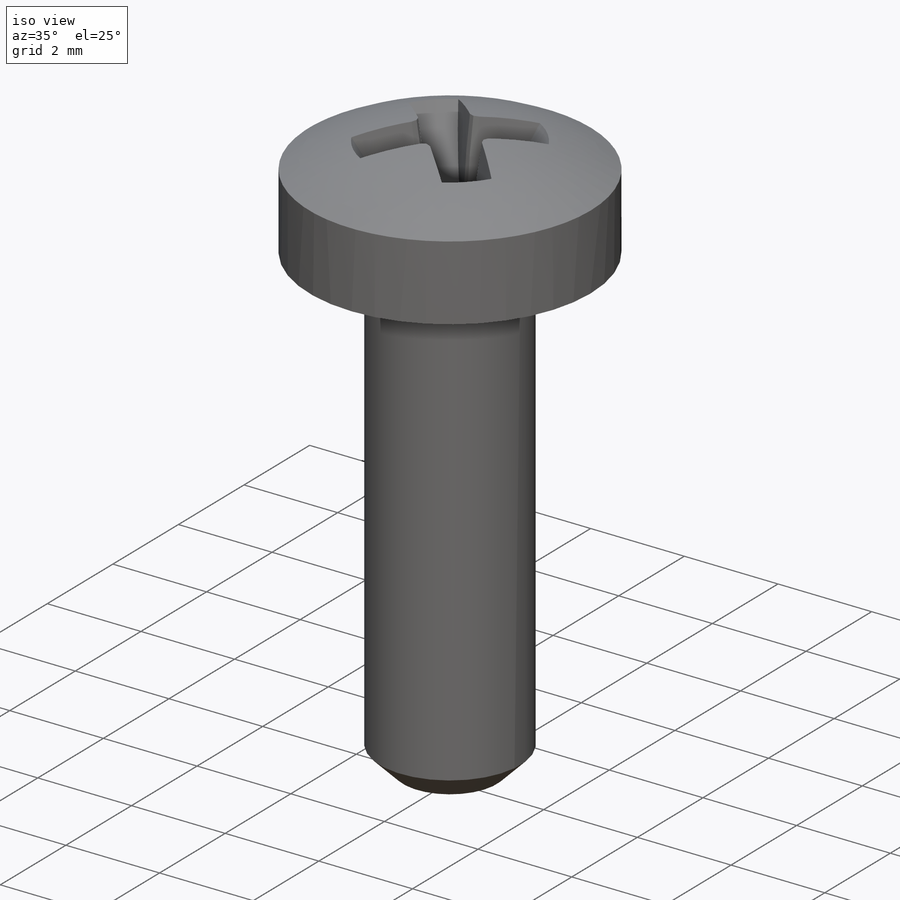
[diagram: iso view]
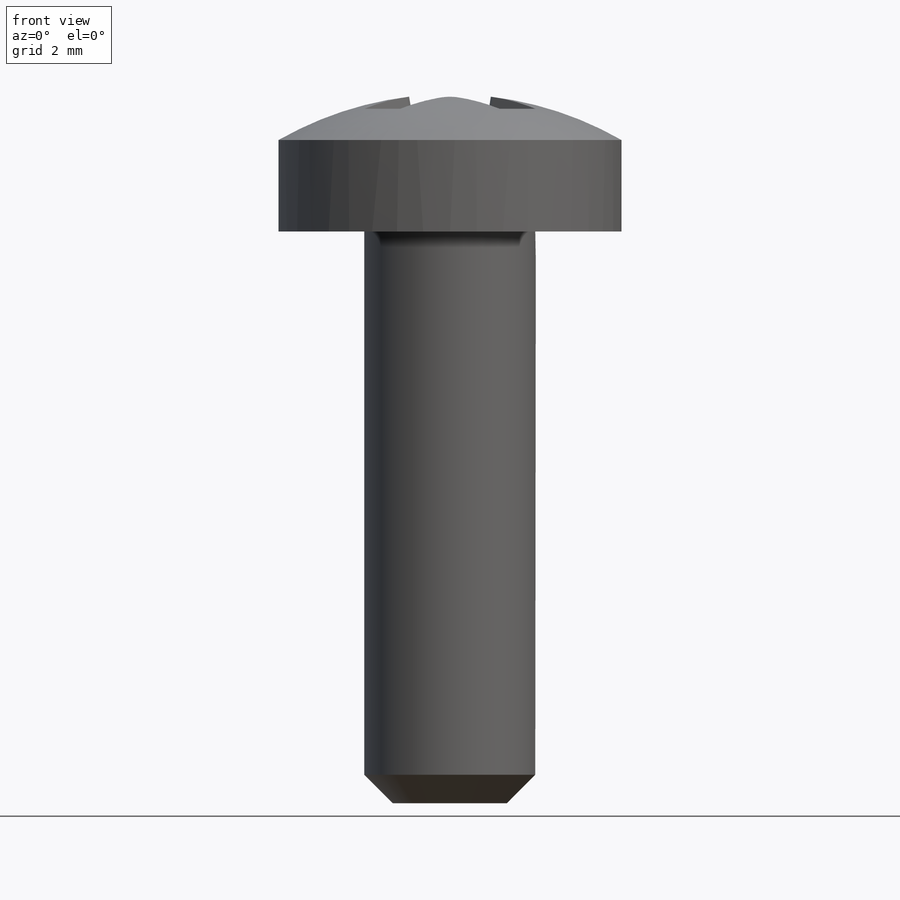
[diagram: front view]
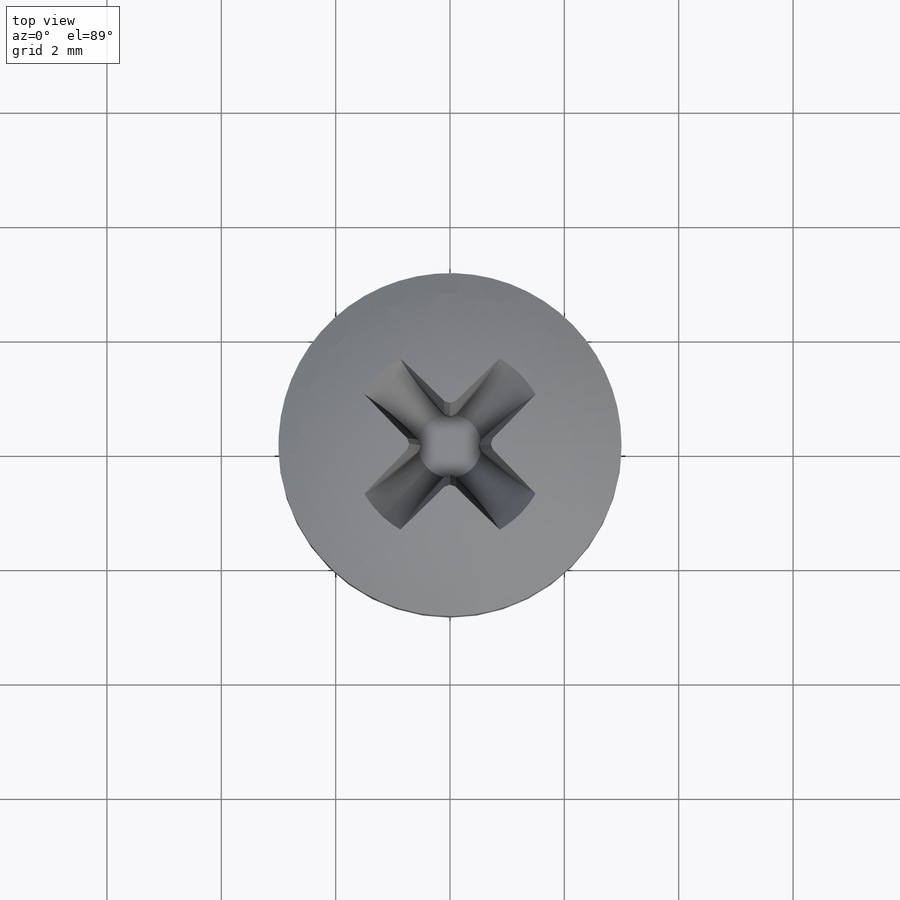
[diagram: top view]
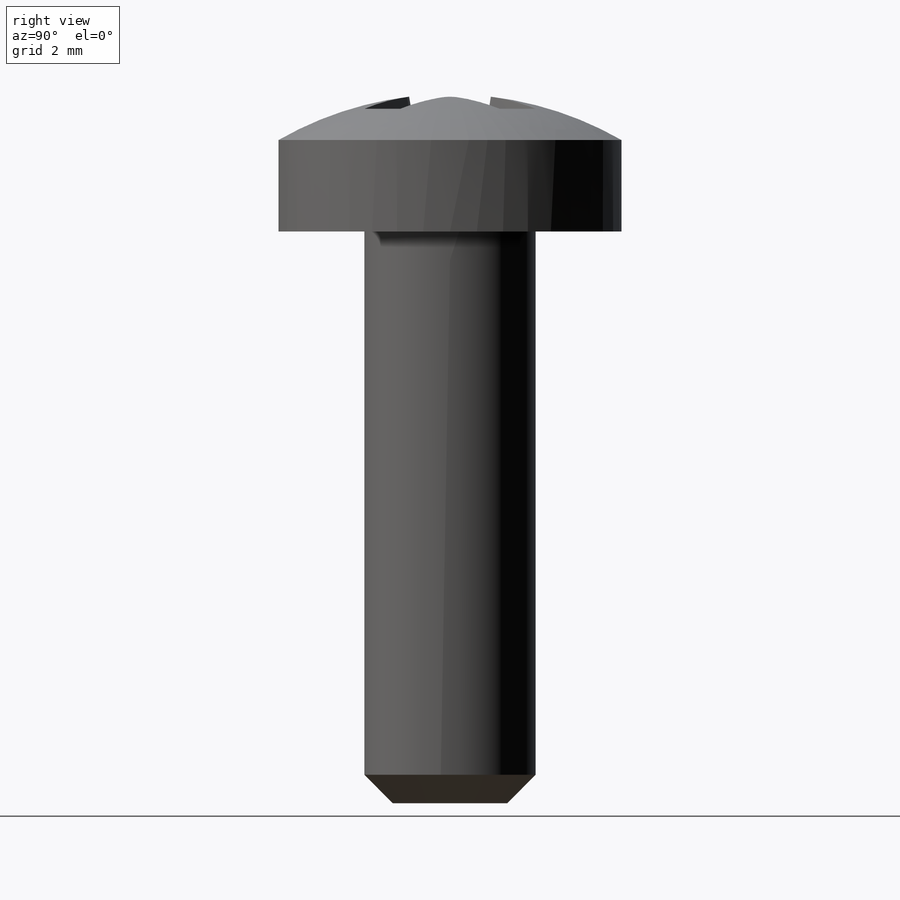
[diagram: right view]
SOLIDWORKS PART (.sldprt)
format: sldprt  version: not decoded by parser v0  size: 1,861,632 bytes
history: native  units: mm
features: sketch x4, plane x3, revolve x2, material x1, cut_revolve x1, pattern_circular x1, boolean_combine x1 + 1 further entry (+9 scaffold rows collapsed)
feature tree (23):
  scaffold x9  (default folders/planes/origin — collapsed)
  material  "Acier non allié"
  plane  "Plan de face"
  plane  "Plan de dessus"
  plane  "Plan de droite"
  "Famille de pièces"
  sketch  "Esquisse1"  dims[c1.D1=~14.598221mm c1.D5=2.4mm c2.D1=~27.659786mm c2.D4=4.0mm c3.D1=~62.490629mm c3.D4=4.0mm c3.D3=0.5mm c3.D2=0.5mm c4.D1=0.8mm c4.D4=2.4mm c4.D5=2.2mm c5.D4=~1.779665mm c5.D5=~3.55933mm c6.D4=2.0mm c7.D4=8.0mm]
  revolve  "Révolution1"  Angle=360deg
  sketch  "Esquisse3"  dims[c1.D1=~22.579361mm c2.D1=~18.215227mm]
  sketch  "Esquisse4"  dims[c1.D1=3.0mm c1.D2=~1.012746mm c2.D2=120.0deg c2.D3=10.0mm]
  revolve  "Révolution2"  Angle=360deg
  sketch  "Esquisse5"  dims[c1.D1=12.0mm c1.D2=~10.565467mm c2.D2=140.0deg c2.D3=~8.314862mm c3.D3=45.0deg c4.D3=~11.63603mm c5.D3=90.0deg]
  cut_revolve  "Enlèvement de matière-Révolution2"  Angle=360deg
  pattern_circular  "Répétition circulaire1"  Count=4 Angle=360deg
  boolean_combine  "Combiner1"
decode coverage: 8 of 9 modeling features carry decoded parameters; 1 rows unclassified (native names shown)
note: ~ marks probable driven/reference dimensions
note: suppression state not decoded; provenance and decode notes live in map.json
